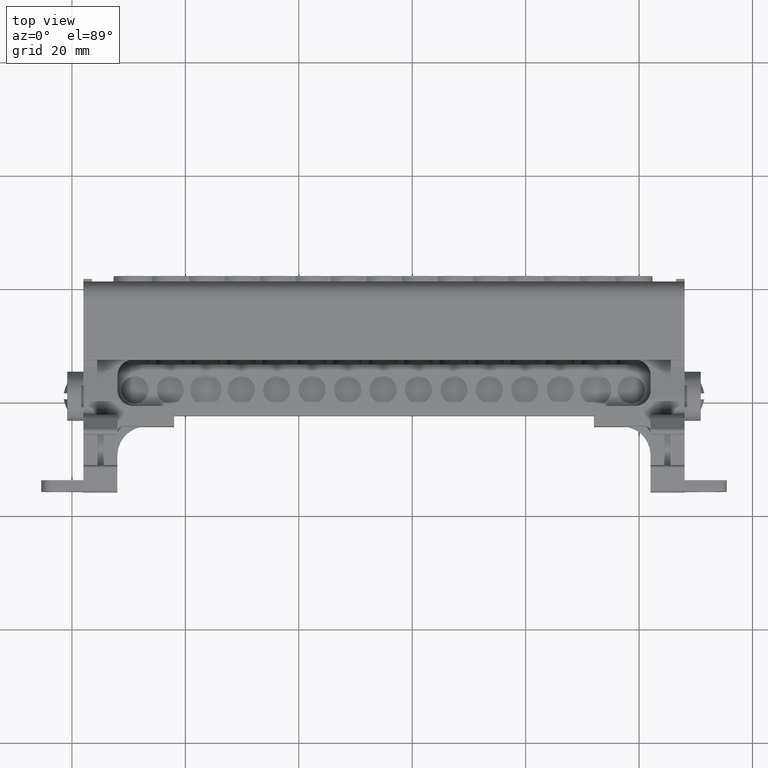
[diagram: clean part render]
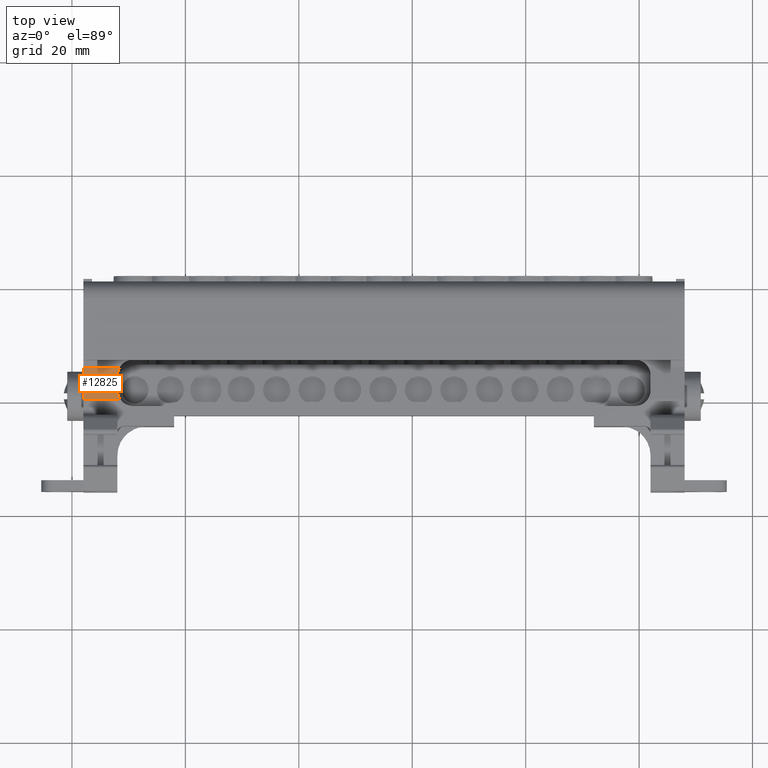
[diagram: same view with one face highlighted and labeled with its STEP entity id]
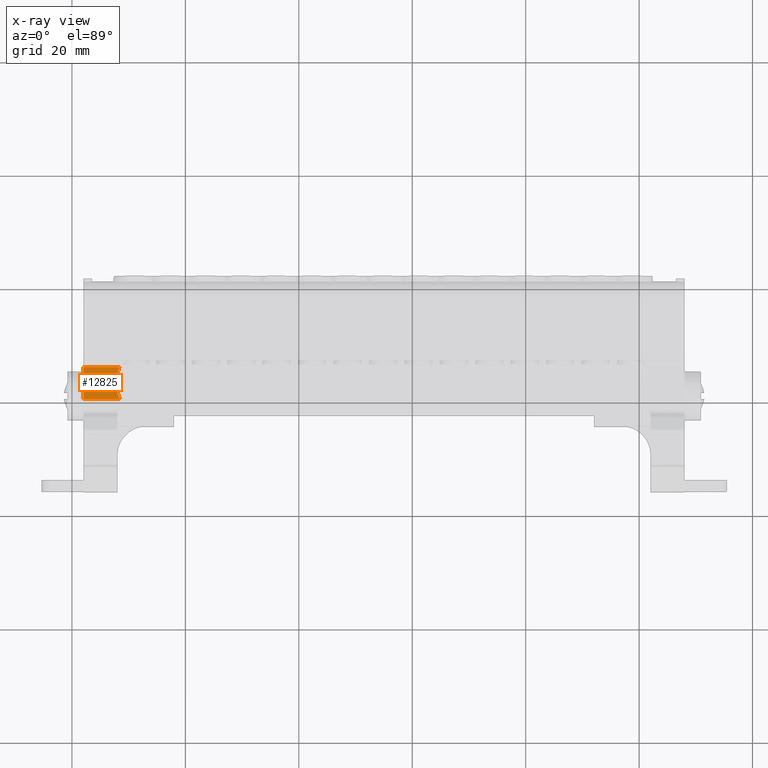
[diagram: x-ray of the same camera — body ghosted, the highlighted face saturated]
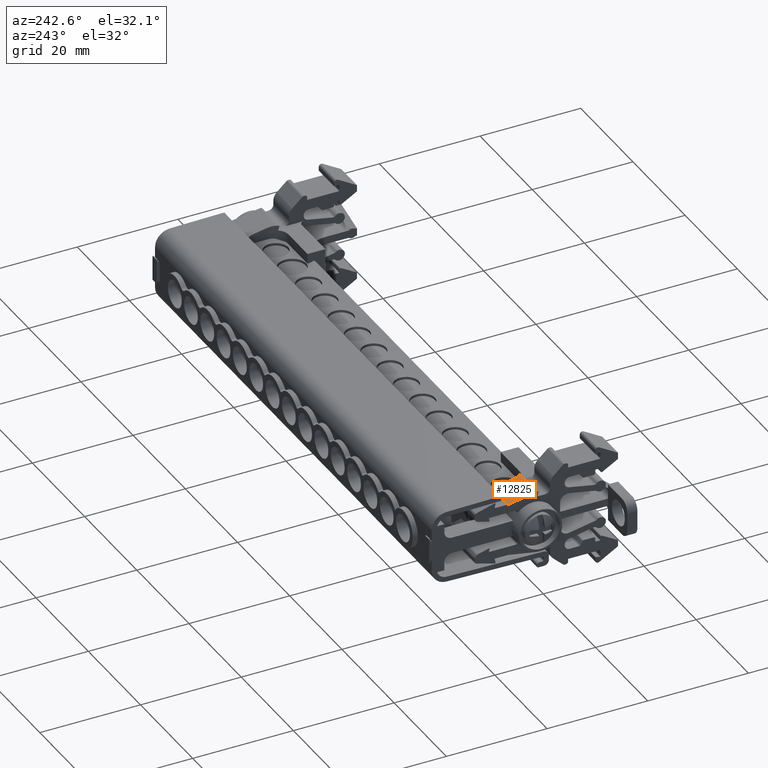
[diagram: same view with one face highlighted and labeled with its STEP entity id]
A machine part, top view. The second image highlights one B-rep face of the part: STEP entity #12825.
The next image is the same camera in x-ray: the body ghosted, the highlighted face saturated — about 0% of this face is hidden behind the body in this view.
A second angle (auxiliary view) of the same face is appended — the face is thin or edge-on in the first view.
In plain terms, the highlighted planar face has unit normal (-0, 0.1736, 0.9848).
Its self-contained STEP definition (entity closure, byte-faithful):
#1763 = ORIENTED_EDGE ( 'NONE', *, *, #36766, .F. ) ;
#1777 = ORIENTED_EDGE ( 'NONE', *, *, #36725, .F. ) ;
#1794 = ORIENTED_EDGE ( 'NONE', *, *, #36882, .T. ) ;
#1803 = ORIENTED_EDGE ( 'NONE', *, *, #36752, .F. ) ;
#1811 = ORIENTED_EDGE ( 'NONE', *, *, #36767, .T. ) ;
#1820 = ORIENTED_EDGE ( 'NONE', *, *, #36801, .T. ) ;
#1825 = ORIENTED_EDGE ( 'NONE', *, *, #36729, .F. ) ;
#1865 = ORIENTED_EDGE ( 'NONE', *, *, #36802, .F. ) ;
#1887 = ORIENTED_EDGE ( 'NONE', *, *, #36817, .T. ) ;
#1919 = ORIENTED_EDGE ( 'NONE', *, *, #36829, .F. ) ;
#1941 = ORIENTED_EDGE ( 'NONE', *, *, #36330, .F. ) ;
#5791 = EDGE_LOOP ( 'NONE', ( #1941, #1811, #1887, #1777, #1763, #1803, #1865, #1825, #1919, #1820, #1794 ) ) ;
#7005 = VECTOR ( 'NONE', #34209, 1000.000000000000100 ) ;
#7150 = VECTOR ( 'NONE', #29367, 1000.000000000000000 ) ;
#7167 = VECTOR ( 'NONE', #29455, 1000.000000000000000 ) ;
#12825 = ADVANCED_FACE ( 'NONE', ( #16292 ), #16285, .T. ) ;
#16285 = PLANE ( 'NONE',  #20880 ) ;
#16290 = CARTESIAN_POINT ( 'NONE',  ( -297.9794392833572900, -116.9195018997956800, 146.7053742078026600 ) ) ;
#16292 = FACE_OUTER_BOUND ( 'NONE', #5791, .T. ) ;
#16299 = DIRECTION ( 'NONE',  ( -4.448609899668644800E-015, 0.1736483321379304100, 0.9848077257747905900 ) ) ;
#16321 = DIRECTION ( 'NONE',  ( 0.0000000000000000000, -0.9848077257747904800, 0.1736483321379303800 ) ) ;
#20880 = AXIS2_PLACEMENT_3D ( 'NONE', #16290, #16299, #16321 ) ;
#25730 = CARTESIAN_POINT ( 'NONE',  ( -297.9794392833572900, -114.6107473331060300, 146.2982780766838600 ) ) ;
#25731 = CARTESIAN_POINT ( 'NONE',  ( -297.9794392833572900, -114.4036893786133100, 146.2617681969522000 ) ) ;
#25745 = CARTESIAN_POINT ( 'NONE',  ( -297.9794392833572400, -118.7728831549327600, 147.0321754652378800 ) ) ;
#25749 = CARTESIAN_POINT ( 'NONE',  ( -297.9794392833572900, -114.1966314180016900, 146.2252583519225500 ) ) ;
#25769 = CARTESIAN_POINT ( 'NONE',  ( -297.9794392833572900, -118.5597753210420400, 146.9945984002188200 ) ) ;
#25771 = CARTESIAN_POINT ( 'NONE',  ( -297.9794392833573500, -113.9895734716790400, 146.1887484258560300 ) ) ;
#25795 = CARTESIAN_POINT ( 'NONE',  ( -297.9794392833572400, -118.4532213357647000, 146.9758102552389100 ) ) ;
#25807 = CARTESIAN_POINT ( 'NONE',  ( -297.9794392833572900, -118.6663292519361500, 147.0133868536211100 ) ) ;
#26132 = CARTESIAN_POINT ( 'NONE',  ( -297.9794392833572900, -116.0798357136744100, 146.5573182649575600 ) ) ;
#26146 = CARTESIAN_POINT ( 'NONE',  ( -297.9794392833572400, -118.1290360903912700, 146.9186478109282900 ) ) ;
#26154 = CARTESIAN_POINT ( 'NONE',  ( -297.9794392833572900, -115.0552355248486800, 146.3766534946224200 ) ) ;
#26171 = CARTESIAN_POINT ( 'NONE',  ( -297.9794392833572400, -117.1044359109582700, 146.7379829873244100 ) ) ;
#26180 = CARTESIAN_POINT ( 'NONE',  ( -291.9439301060797300, -114.9377706445139000, 146.3559411984763000 ) ) ;
#26205 = CARTESIAN_POINT ( 'NONE',  ( -291.9794392833574100, -115.4490366618586800, 146.4460912743410600 ) ) ;
#26216 = CARTESIAN_POINT ( 'NONE',  ( -297.9794392833572900, -114.6107473331060300, 146.2982780766838600 ) ) ;
#26235 = CARTESIAN_POINT ( 'NONE',  ( -297.9794392833572900, -115.0552355248486800, 146.3766534946224200 ) ) ;
#26245 = CARTESIAN_POINT ( 'NONE',  ( -291.9793409511052600, -115.1910262374855300, 146.4005970334917800 ) ) ;
#26247 = CARTESIAN_POINT ( 'NONE',  ( -291.6998193246549200, -114.2092295226253100, 146.2274796243042900 ) ) ;
#26248 = CARTESIAN_POINT ( 'NONE',  ( -291.5637692546180800, -113.9895736032277800, 146.1887484258560300 ) ) ;
#26257 = CARTESIAN_POINT ( 'NONE',  ( -297.9794392833572900, -114.7589100649468000, 146.3244032088514900 ) ) ;
#26260 = CARTESIAN_POINT ( 'NONE',  ( -297.9794392833572900, -114.9070727906686900, 146.3505283757210700 ) ) ;
#26263 = CARTESIAN_POINT ( 'NONE',  ( -291.8030614240715300, -114.4428001588081800, 146.2686644671400700 ) ) ;
#28625 = CARTESIAN_POINT ( 'NONE',  ( -291.6536150040194600, -119.4302881751642100, 147.1480939770140100 ) ) ;
#28626 = CARTESIAN_POINT ( 'NONE',  ( -291.7736086107757400, -119.1814771601442400, 147.1042218417281600 ) ) ;
#28628 = CARTESIAN_POINT ( 'NONE',  ( -291.9793332830677700, -118.3765774006700000, 146.9622961671900600 ) ) ;
#28631 = CARTESIAN_POINT ( 'NONE',  ( -291.4962068303444800, -119.6608547612751200, 147.1887489016151000 ) ) ;
#28632 = CARTESIAN_POINT ( 'NONE',  ( -291.9794392833575200, -118.0970366618715400, 146.9130055475224600 ) ) ;
#28662 = CARTESIAN_POINT ( 'NONE',  ( -291.9381459484934000, -118.6493736480842400, 147.0103975499647200 ) ) ;
#29332 = CARTESIAN_POINT ( 'NONE',  ( -297.9794392833572400, -118.2370978688773800, 146.9377017887329900 ) ) ;
#29346 = CARTESIAN_POINT ( 'NONE',  ( -297.9794392833572900, -118.3451596295126600, 146.9567558677747500 ) ) ;
#29352 = CARTESIAN_POINT ( 'NONE',  ( -297.9794392833572400, -118.4532213357647000, 146.9758102552389100 ) ) ;
#29354 = CARTESIAN_POINT ( 'NONE',  ( -297.9794392833572400, -118.1290360903912700, 146.9186478109282900 ) ) ;
#29360 = CARTESIAN_POINT ( 'NONE',  ( -297.9794392833572900, -119.6608547287409600, 147.1887491185482300 ) ) ;
#29367 = DIRECTION ( 'NONE',  ( 1.000000000000000000, 7.724936894097458500E-016, 4.381025398151896300E-015 ) ) ;
#29370 = LINE ( 'NONE', #29360, #7150 ) ;
#29417 = LINE ( 'NONE', #29470, #7167 ) ;
#29455 = DIRECTION ( 'NONE',  ( -1.000000000000000000, -7.724936894097458500E-016, -4.381025398151896300E-015 ) ) ;
#29470 = CARTESIAN_POINT ( 'NONE',  ( -297.9794392833572900, -113.9895734931124700, 146.1887483043007300 ) ) ;
#29492 = CARTESIAN_POINT ( 'NONE',  ( -297.9794392833572400, -118.7728831549327600, 147.0321754652378800 ) ) ;
#29514 = CARTESIAN_POINT ( 'NONE',  ( -297.9794392833572400, -119.6608547612752200, 147.1887489178262500 ) ) ;
#29520 = CARTESIAN_POINT ( 'NONE',  ( -297.9794392833572900, -119.0688737162084200, 147.0843664750257500 ) ) ;
#29541 = CARTESIAN_POINT ( 'NONE',  ( -297.9794392833572900, -119.3648642495865600, 147.1365576430280000 ) ) ;
#34209 = DIRECTION ( 'NONE',  ( 2.064494357965619300E-014, -0.9848077257747842600, 0.1736483321379660400 ) ) ;
#34221 = LINE ( 'NONE', #34283, #7005 ) ;
#34283 = CARTESIAN_POINT ( 'NONE',  ( -291.9794392833574100, -115.4490366618586800, 146.4460912743410900 ) ) ;
#34862 = B_SPLINE_CURVE_WITH_KNOTS ( 'NONE', 3,
 ( #25730, #25731, #25749, #25771 ),
 .UNSPECIFIED., .F., .F.,
 ( 4, 4 ),
 ( 0.0000000000000000000, 1.000000000000000000 ),
 .UNSPECIFIED. ) ;
#34884 = B_SPLINE_CURVE_WITH_KNOTS ( 'NONE', 3,
 ( #25745, #25807, #25769, #25795 ),
 .UNSPECIFIED., .F., .F.,
 ( 4, 4 ),
 ( 0.0000000000000000000, 1.000000000000000000 ),
 .UNSPECIFIED. ) ;
#34933 = B_SPLINE_CURVE_WITH_KNOTS ( 'NONE', 3,
 ( #26146, #26171, #26132, #26154 ),
 .UNSPECIFIED., .F., .F.,
 ( 4, 4 ),
 ( 0.0000000000000000000, 1.000000000000000000 ),
 .UNSPECIFIED. ) ;
#35028 = B_SPLINE_CURVE_WITH_KNOTS ( 'NONE', 3,
 ( #29352, #29346, #29332, #29354 ),
 .UNSPECIFIED., .F., .F.,
 ( 4, 4 ),
 ( 0.0000000000000000000, 1.000000000000000000 ),
 .UNSPECIFIED. ) ;
#35139 = B_SPLINE_CURVE_WITH_KNOTS ( 'NONE', 3,
 ( #26205, #26245, #26180, #26263, #26247, #26248 ),
 .UNSPECIFIED., .F., .F.,
 ( 4, 2, 4 ),
 ( 0.0000000000000000000, 0.5000000000000000000, 1.000000000000000000 ),
 .UNSPECIFIED. ) ;
#35150 = B_SPLINE_CURVE_WITH_KNOTS ( 'NONE', 3,
 ( #26235, #26260, #26257, #26216 ),
 .UNSPECIFIED., .F., .F.,
 ( 4, 4 ),
 ( 0.0000000000000000000, 1.000000000000000000 ),
 .UNSPECIFIED. ) ;
#35187 = B_SPLINE_CURVE_WITH_KNOTS ( 'NONE', 3,
 ( #28631, #28625, #28626, #28662, #28628, #28632 ),
 .UNSPECIFIED., .F., .F.,
 ( 4, 2, 4 ),
 ( 0.0000000000000000000, 0.5000000000000000000, 1.000000000000000000 ),
 .UNSPECIFIED. ) ;
#35315 = B_SPLINE_CURVE_WITH_KNOTS ( 'NONE', 3,
 ( #29514, #29541, #29520, #29492 ),
 .UNSPECIFIED., .F., .F.,
 ( 4, 4 ),
 ( 0.0000000000000000000, 1.000000000000000000 ),
 .UNSPECIFIED. ) ;
#36330 = EDGE_CURVE ( 'NONE', #40086, #40052, #34221, .T. ) ;
#36725 = EDGE_CURVE ( 'NONE', #40323, #40336, #34862, .T. ) ;
#36729 = EDGE_CURVE ( 'NONE', #40365, #40357, #34884, .T. ) ;
#36752 = EDGE_CURVE ( 'NONE', #40272, #40348, #34933, .T. ) ;
#36766 = EDGE_CURVE ( 'NONE', #40348, #40323, #35150, .T. ) ;
#36767 = EDGE_CURVE ( 'NONE', #40086, #40240, #35139, .T. ) ;
#36801 = EDGE_CURVE ( 'NONE', #40344, #40383, #29370, .T. ) ;
#36802 = EDGE_CURVE ( 'NONE', #40357, #40272, #35028, .T. ) ;
#36817 = EDGE_CURVE ( 'NONE', #40240, #40336, #29417, .T. ) ;
#36829 = EDGE_CURVE ( 'NONE', #40344, #40365, #35315, .T. ) ;
#36882 = EDGE_CURVE ( 'NONE', #40383, #40052, #35187, .T. ) ;
#37639 = CARTESIAN_POINT ( 'NONE',  ( -291.9794392833575200, -118.0970366618715400, 146.9130055475224600 ) ) ;
#37704 = CARTESIAN_POINT ( 'NONE',  ( -291.9794392833574100, -115.4490366618586800, 146.4460912743410600 ) ) ;
#37829 = CARTESIAN_POINT ( 'NONE',  ( -291.5637692546180800, -113.9895736032277800, 146.1887484258560300 ) ) ;
#37871 = CARTESIAN_POINT ( 'NONE',  ( -297.9794392833572400, -118.1290360903912700, 146.9186478109282900 ) ) ;
#37923 = CARTESIAN_POINT ( 'NONE',  ( -297.9794392833572400, -118.4532213357647000, 146.9758102552389100 ) ) ;
#37929 = CARTESIAN_POINT ( 'NONE',  ( -297.9794392833572400, -118.7728831549327600, 147.0321754652378800 ) ) ;
#37940 = CARTESIAN_POINT ( 'NONE',  ( -297.9794392833572400, -119.6608547612752200, 147.1887489178262500 ) ) ;
#37946 = CARTESIAN_POINT ( 'NONE',  ( -297.9794392833573500, -113.9895734716790400, 146.1887484258560300 ) ) ;
#37955 = CARTESIAN_POINT ( 'NONE',  ( -297.9794392833572900, -115.0552355248486800, 146.3766534946224200 ) ) ;
#37982 = CARTESIAN_POINT ( 'NONE',  ( -297.9794392833572900, -114.6107473331060300, 146.2982780766838600 ) ) ;
#38285 = CARTESIAN_POINT ( 'NONE',  ( -291.4962068303444800, -119.6608547612751200, 147.1887489016151000 ) ) ;
#40052 = VERTEX_POINT ( 'NONE', #37639 ) ;
#40086 = VERTEX_POINT ( 'NONE', #37704 ) ;
#40240 = VERTEX_POINT ( 'NONE', #37829 ) ;
#40272 = VERTEX_POINT ( 'NONE', #37871 ) ;
#40323 = VERTEX_POINT ( 'NONE', #37982 ) ;
#40336 = VERTEX_POINT ( 'NONE', #37946 ) ;
#40344 = VERTEX_POINT ( 'NONE', #37940 ) ;
#40348 = VERTEX_POINT ( 'NONE', #37955 ) ;
#40357 = VERTEX_POINT ( 'NONE', #37923 ) ;
#40365 = VERTEX_POINT ( 'NONE', #37929 ) ;
#40383 = VERTEX_POINT ( 'NONE', #38285 ) ;